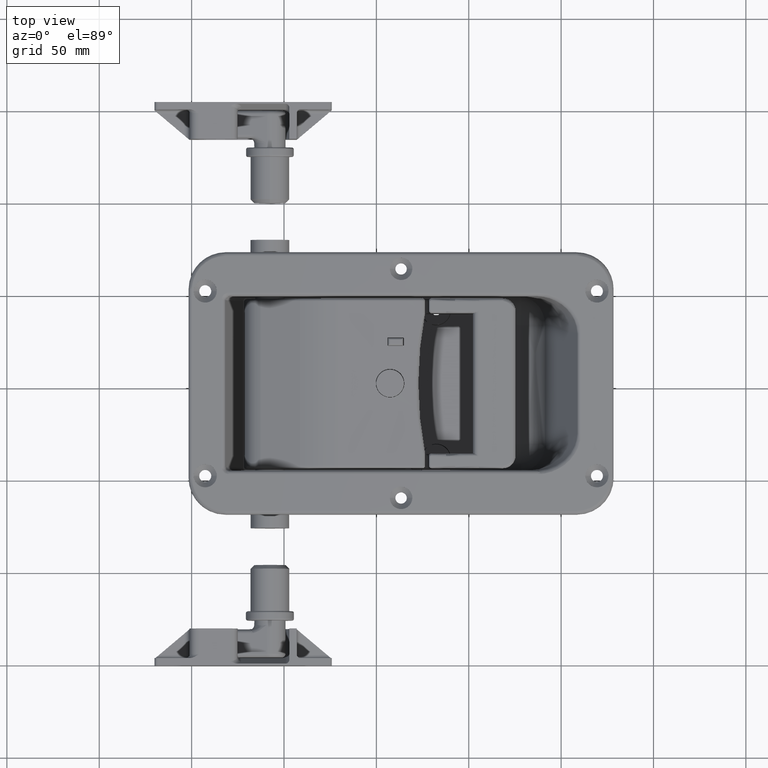
[diagram: clean part render]
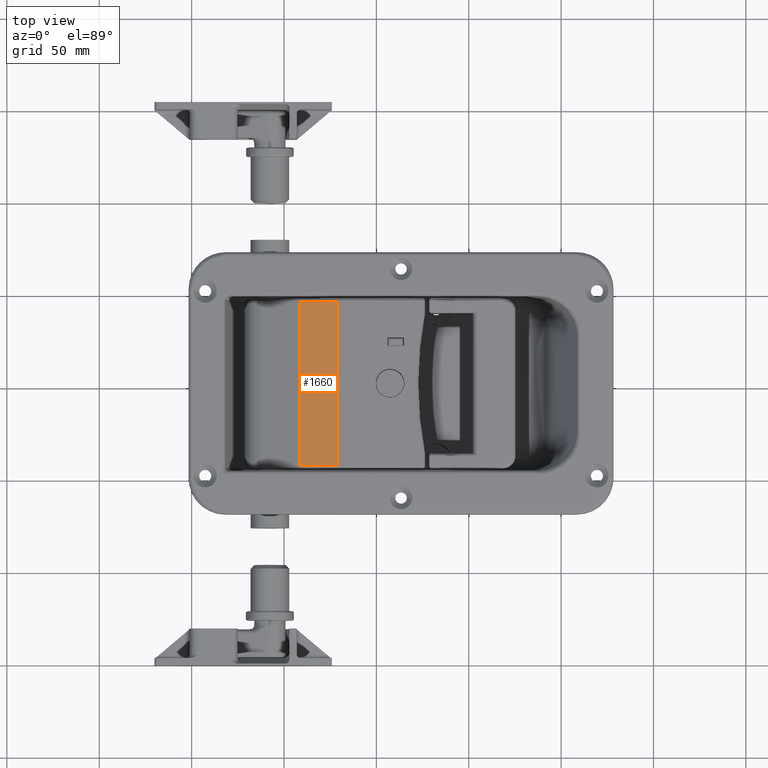
[diagram: same view with one face highlighted and labeled with its STEP entity id]
A machine part, top view. The second image highlights one B-rep face of the part: STEP entity #1660.
In plain terms, the highlighted cylindrical surface (partial cylindrical patch) has radius 60 mm, axis along (-0, -1, -0).
Its self-contained STEP definition (entity closure, byte-faithful):
#43 = EDGE_LOOP ( 'NONE', ( #25572, #25571, #25570, #25569 ) ) ;
#298 = VERTEX_POINT ( 'NONE', #8048 ) ;
#300 = VERTEX_POINT ( 'NONE', #8050 ) ;
#450 = VERTEX_POINT ( 'NONE', #8200 ) ;
#451 = VERTEX_POINT ( 'NONE', #8201 ) ;
#1442 = EDGE_CURVE ( 'NONE', #300, #298, #7636, .T. ) ;
#1528 = EDGE_CURVE ( 'NONE', #451, #450, #7747, .T. ) ;
#1530 = EDGE_CURVE ( 'NONE', #450, #298, #7752, .T. ) ;
#1660 = ADVANCED_FACE ( 'NONE', ( #11024 ), #11025, .T. ) ;
#1768 = EDGE_CURVE ( 'NONE', #300, #451, #11206, .T. ) ;
#6591 = AXIS2_PLACEMENT_3D ( 'NONE', #9783, #9784, #9785 ) ;
#7636 = LINE ( 'NONE', #9494, #7638 ) ;
#7638 = VECTOR ( 'NONE', #9495, 1000.000000000000000 ) ;
#7747 = LINE ( 'NONE', #9779, #7748 ) ;
#7748 = VECTOR ( 'NONE', #9780, 1000.000000000000000 ) ;
#7752 = CIRCLE ( 'NONE', #6591, 60.00000000000019200 ) ;
#8048 = CARTESIAN_POINT ( 'NONE',  ( 36.61000229017118100, -44.50000000000000000, 25.29194627695407900 ) ) ;
#8050 = CARTESIAN_POINT ( 'NONE',  ( 36.61000229017118100, 44.50000000000000000, 25.29194627695407900 ) ) ;
#8200 = CARTESIAN_POINT ( 'NONE',  ( 16.28522544863983900, -44.50000000000000000, 21.28604538782730100 ) ) ;
#8201 = CARTESIAN_POINT ( 'NONE',  ( 16.28522544863983900, 44.50000000000000000, 21.28604538782730100 ) ) ;
#9494 = CARTESIAN_POINT ( 'NONE',  ( 36.61000229017118100, 46.00000000000000000, 25.29194627695407900 ) ) ;
#9495 = DIRECTION ( 'NONE',  ( -0.0000000000000000000, -1.000000000000000000, -0.0000000000000000000 ) ) ;
#9779 = CARTESIAN_POINT ( 'NONE',  ( 16.28522544863983900, 46.00000000000000000, 21.28604538782730100 ) ) ;
#9780 = DIRECTION ( 'NONE',  ( -0.0000000000000000000, -1.000000000000000000, -0.0000000000000000000 ) ) ;
#9783 = CARTESIAN_POINT ( 'NONE',  ( 37.87587872404922300, -44.50000000000000000, -34.69469854382366900 ) ) ;
#9784 = DIRECTION ( 'NONE',  ( 0.0000000000000000000, 1.000000000000000000, 0.0000000000000000000 ) ) ;
#9785 = DIRECTION ( 'NONE',  ( 0.0000000000000000000, 0.0000000000000000000, 1.000000000000000000 ) ) ;
#11024 = FACE_OUTER_BOUND ( 'NONE', #43, .T. ) ;
#11025 = CYLINDRICAL_SURFACE ( 'NONE', #12863, 60.00000000000019900 ) ;
#11206 = CIRCLE ( 'NONE', #12965, 60.00000000000019200 ) ;
#11594 = CARTESIAN_POINT ( 'NONE',  ( 37.87587872404922300, 46.00000000000000000, -34.69469854382366900 ) ) ;
#11595 = DIRECTION ( 'NONE',  ( -0.0000000000000000000, -1.000000000000000000, -0.0000000000000000000 ) ) ;
#11596 = DIRECTION ( 'NONE',  ( 0.0000000000000000000, 0.0000000000000000000, -1.000000000000000000 ) ) ;
#12057 = CARTESIAN_POINT ( 'NONE',  ( 37.87587872404922300, 44.50000000000000000, -34.69469854382366900 ) ) ;
#12058 = DIRECTION ( 'NONE',  ( -0.0000000000000000000, -1.000000000000000000, -0.0000000000000000000 ) ) ;
#12059 = DIRECTION ( 'NONE',  ( 0.0000000000000000000, 0.0000000000000000000, 1.000000000000000000 ) ) ;
#12863 = AXIS2_PLACEMENT_3D ( 'NONE', #11594, #11595, #11596 ) ;
#12965 = AXIS2_PLACEMENT_3D ( 'NONE', #12057, #12058, #12059 ) ;
#25569 = ORIENTED_EDGE ( 'NONE', *, *, #1768, .T. ) ;
#25570 = ORIENTED_EDGE ( 'NONE', *, *, #1442, .F. ) ;
#25571 = ORIENTED_EDGE ( 'NONE', *, *, #1530, .T. ) ;
#25572 = ORIENTED_EDGE ( 'NONE', *, *, #1528, .T. ) ;